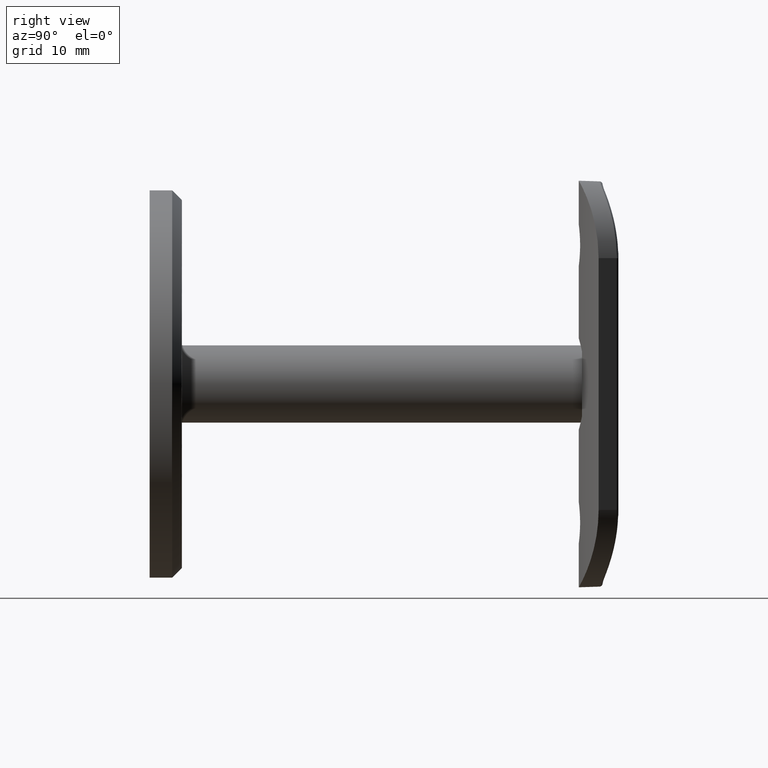
[diagram: clean part render]
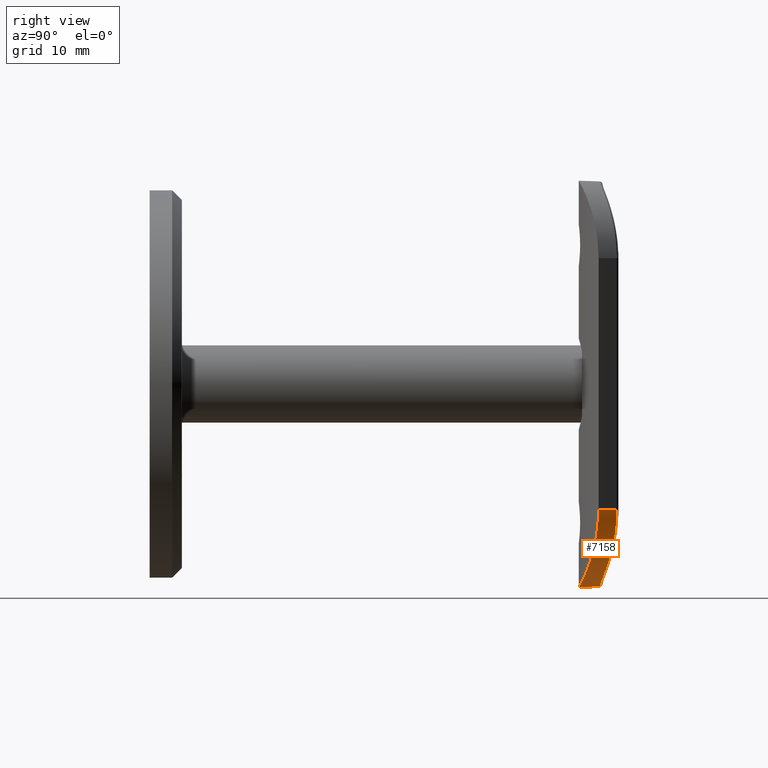
[diagram: same view with one face highlighted and labeled with its STEP entity id]
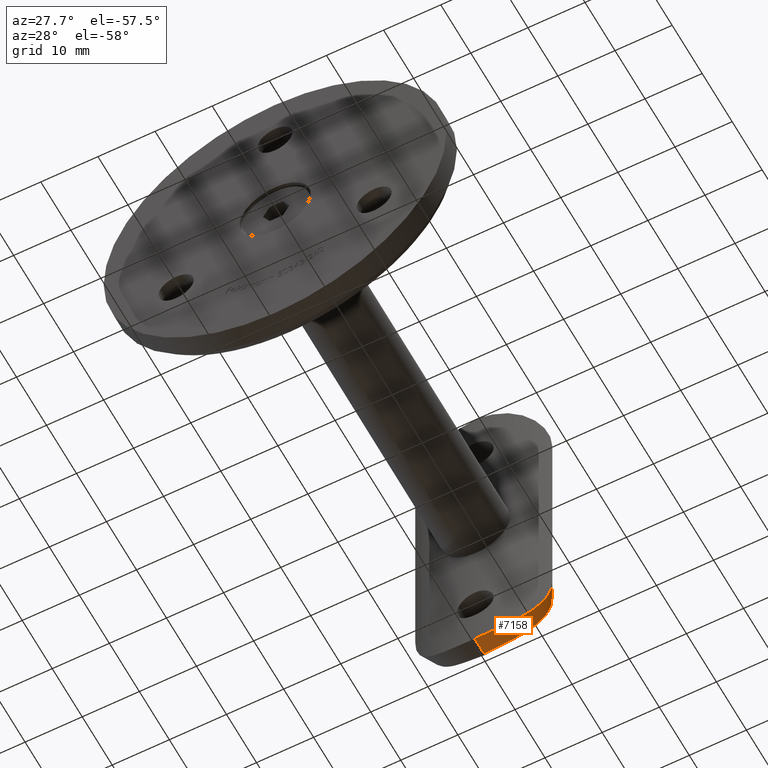
[diagram: same view with one face highlighted and labeled with its STEP entity id]
A machine part, right view. The second image highlights one B-rep face of the part: STEP entity #7158.
A second angle (auxiliary view) of the same face is appended — the face is thin or edge-on in the first view.
In plain terms, the highlighted cylindrical surface (partial cylindrical patch) has radius 12 mm, axis along (-0.4819, 0.8762, 0).
Its self-contained STEP definition (entity closure, byte-faithful):
#664 = CARTESIAN_POINT ( 'NONE',  ( -9.493047847731215683, 1.715295632416773852, 24.51326570578499897 ) ) ;
#683 = CARTESIAN_POINT ( 'NONE',  ( -9.166149050193594050, -1.952978448766014008, 27.58848537800124845 ) ) ;
#774 = CARTESIAN_POINT ( 'NONE',  ( -10.45505487545768730, 2.191269701761533462, 19.50000000000000000 ) ) ;
#792 = CARTESIAN_POINT ( 'NONE',  ( -8.074259893479329264, -2.356718930519098087, 28.69397140321250461 ) ) ;
#809 = B_SPLINE_CURVE_WITH_KNOTS ( 'NONE', 3,
 ( #10705, #4373, #12459, #13646, #12297, #4493, #4647, #11151, #5887, #8466, #8356, #792, #13746, #4546, #683, #5941, #16214, #10992, #5829, #15035, #5725, #9846, #4430, #7132 ),
 .UNSPECIFIED., .F., .F.,
 ( 4, 2, 2, 2, 2, 2, 2, 2, 2, 2, 2, 4 ),
 ( 6.199631591291489624E-18, 0.002406420888280990690, 0.003609631332421483867, 0.004812841776561977911, 0.007219262664842959927, 0.008422473108983450502, 0.009625683553123940209, 0.01082889399726443339, 0.01203210444140492136, 0.01443852532968591465, 0.01684494621796690447, 0.01925136710624789776 ),
 .UNSPECIFIED. ) ;
#1785 = DIRECTION ( 'NONE',  ( -0.8762109800277930738, 0.4819277108433734913, 0.000000000000000000 ) ) ;
#1845 = CARTESIAN_POINT ( 'NONE',  ( -2.885545255493508598, -0.2540987631411671388, 30.76614118052227909 ) ) ;
#1894 = CARTESIAN_POINT ( 'NONE',  ( -6.614694112078485233, 0.5932317887515379251, 28.59215257876478944 ) ) ;
#2163 = CARTESIAN_POINT ( 'NONE',  ( -9.960288091199432259, 1.940309669445862584, 23.12431856137339281 ) ) ;
#2514 = ORIENTED_EDGE ( 'NONE', *, *, #15013, .F. ) ;
#3156 = CARTESIAN_POINT ( 'NONE',  ( -3.563487049633609072, -0.1463804021405584466, 30.50564224895477494 ) ) ;
#3332 = CARTESIAN_POINT ( 'NONE',  ( -4.633017360115230467E-16, -0.4686549437375175930, 31.39852492656308769 ) ) ;
#3542 = CARTESIAN_POINT ( 'NONE',  ( -10.39441033852605933, 2.159319790259920602, 20.97575775976511636 ) ) ;
#4074 = VERTEX_POINT ( 'NONE', #10843 ) ;
#4373 = CARTESIAN_POINT ( 'NONE',  ( -0.8125589719993493443, -3.699999999999995293, 31.50000000000000711 ) ) ;
#4430 = CARTESIAN_POINT ( 'NONE',  ( -12.00000000000000000, -0.6176534026920423859, 20.31329885972721527 ) ) ;
#4493 = CARTESIAN_POINT ( 'NONE',  ( -3.959980470126887031, -3.386209395477758566, 30.94697538539421799 ) ) ;
#4529 = CARTESIAN_POINT ( 'NONE',  ( -8.056363116155694115, 1.104545384783348849, 27.00031777044233294 ) ) ;
#4546 = CARTESIAN_POINT ( 'NONE',  ( -8.908510052025812698, -2.053669611251317750, 27.87937364185427569 ) ) ;
#4628 = CARTESIAN_POINT ( 'NONE',  ( -1.462267733718383811, -0.4027156887386995066, 31.15653743707208889 ) ) ;
#4647 = CARTESIAN_POINT ( 'NONE',  ( -4.343585444218815539, -3.321130880666913310, 30.82433790244267158 ) ) ;
#5011 = ORIENTED_EDGE ( 'NONE', *, *, #8824, .F. ) ;
#5725 = CARTESIAN_POINT ( 'NONE',  ( -11.64449887647197635, -0.8100347474686370175, 22.69149219421942831 ) ) ;
#5795 = AXIS2_PLACEMENT_3D ( 'NONE', #9543, #10859, #1785 ) ;
#5811 = CARTESIAN_POINT ( 'NONE',  ( -8.471561614151779551, 1.269723628537176463, 26.40975643252788529 ) ) ;
#5829 = CARTESIAN_POINT ( 'NONE',  ( -10.86337671054186416, -1.207519595627838838, 24.95273175522527609 ) ) ;
#5887 = CARTESIAN_POINT ( 'NONE',  ( -6.156121038829931003, -2.936724213265714756, 30.05584034722584263 ) ) ;
#5926 = CARTESIAN_POINT ( 'NONE',  ( -0.3694255239971115379, -0.4630373677216959583, 31.35580555292285254 ) ) ;
#5941 = CARTESIAN_POINT ( 'NONE',  ( -9.651496139240768102, -1.754897554413284544, 26.97737785628717688 ) ) ;
#6036 = ORIENTED_EDGE ( 'NONE', *, *, #13974, .T. ) ;
#6579 = CARTESIAN_POINT ( 'NONE',  ( -11.99999999999999822, -0.6176534026920421638, 19.50000000000000000 ) ) ;
#6677 =( BOUNDED_CURVE ( )  B_SPLINE_CURVE ( 3, ( #7920, #12919, #10326, #15685 ),
 .UNSPECIFIED., .F., .F. ) 
 B_SPLINE_CURVE_WITH_KNOTS ( ( 4, 4 ),
 ( 4.712388980384689674, 4.842528913632067500 ),
 .UNSPECIFIED. ) 
 CURVE ( )  GEOMETRIC_REPRESENTATION_ITEM ( )  RATIONAL_B_SPLINE_CURVE ( ( 1.000000000000000000, 0.9985891310666825671, 0.9985891310666825671, 1.000000000000000000 ) ) 
 REPRESENTATION_ITEM ( '' )  );
#7116 = CARTESIAN_POINT ( 'NONE',  ( -8.663671254142759182, 1.349547193717770099, 26.10600176303315578 ) ) ;
#7132 = CARTESIAN_POINT ( 'NONE',  ( -11.99999999999999822, -0.6176534026920421638, 19.50000000000000000 ) ) ;
#7158 = ADVANCED_FACE ( 'NONE', ( #8766 ), #10632, .T. ) ;
#7448 = CARTESIAN_POINT ( 'NONE',  ( -10.21500871849437964, 2.067696369064172313, 22.05711163707681166 ) ) ;
#7625 = EDGE_LOOP ( 'NONE', ( #16491, #6036, #2514, #5011 ) ) ;
#7920 = CARTESIAN_POINT ( 'NONE',  ( -2.637213831673503539E-15, -3.699999999999994849, 31.50000000000000000 ) ) ;
#8333 = CARTESIAN_POINT ( 'NONE',  ( -1.823709883739445425, -0.3711974704668269953, 31.06997820427039159 ) ) ;
#8356 = CARTESIAN_POINT ( 'NONE',  ( -7.465386431756503960, -2.556697687672661257, 29.18815436188813450 ) ) ;
#8449 = CARTESIAN_POINT ( 'NONE',  ( -9.196144659064131588, 1.577887941172740449, 25.17001518979866503 ) ) ;
#8466 = CARTESIAN_POINT ( 'NONE',  ( -7.144447545478622708, -2.655485527817233127, 29.42030368926517525 ) ) ;
#8612 = CARTESIAN_POINT ( 'NONE',  ( -10.45505487545768375, 2.191269701761546784, 20.24369463097169941 ) ) ;
#8735 = VERTEX_POINT ( 'NONE', #10482 ) ;
#8766 = FACE_OUTER_BOUND ( 'NONE', #7625, .T. ) ;
#8824 = EDGE_CURVE ( 'NONE', #8735, #4074, #809, .T. ) ;
#9543 = CARTESIAN_POINT ( 'NONE',  ( -1.485468239666479562, -6.400785932812527612, 19.50000000000000000 ) ) ;
#9775 = CARTESIAN_POINT ( 'NONE',  ( -5.467565589066911258, 0.2703062758297813395, 29.45920198927894873 ) ) ;
#9846 = CARTESIAN_POINT ( 'NONE',  ( -11.92848259060795435, -0.6574309275929482999, 21.11410712426872038 ) ) ;
#10098 = CARTESIAN_POINT ( 'NONE',  ( -4.633017360115230467E-16, -0.4686549437375175930, 31.39852492656308769 ) ) ;
#10218 = VECTOR ( 'NONE', #10743, 1000.000000000000114 ) ;
#10326 = CARTESIAN_POINT ( 'NONE',  ( -2.194262323017153478E-17, -1.540438768114509305, 31.46612718541925346 ) ) ;
#10482 = CARTESIAN_POINT ( 'NONE',  ( -2.637213831673503539E-15, -3.699999999999994849, 31.50000000000000000 ) ) ;
#10632 = CYLINDRICAL_SURFACE ( 'NONE', #5795, 12.00000000000000178 ) ;
#10705 = CARTESIAN_POINT ( 'NONE',  ( -2.637213831673503539E-15, -3.699999999999994849, 31.50000000000000000 ) ) ;
#10743 = DIRECTION ( 'NONE',  ( 0.4819277108433735468, 0.8762109800277931848, 0.000000000000000000 ) ) ;
#10843 = CARTESIAN_POINT ( 'NONE',  ( -11.99999999999999822, -0.6176534026920421638, 19.50000000000000000 ) ) ;
#10859 = DIRECTION ( 'NONE',  ( 0.4819277108433735468, 0.8762109800277932958, 0.000000000000000000 ) ) ;
#10992 = CARTESIAN_POINT ( 'NONE',  ( -10.51395294504080091, -1.376102020913432256, 25.65610659191668930 ) ) ;
#11035 = CARTESIAN_POINT ( 'NONE',  ( -7.131093571847407553, 0.7641680875062166756, 28.10124151802545001 ) ) ;
#11151 = CARTESIAN_POINT ( 'NONE',  ( -5.455945028680432074, -3.106646016184993808, 30.40527435075045304 ) ) ;
#11414 = CARTESIAN_POINT ( 'NONE',  ( -10.14034840887878275, 2.029866555024359087, 22.41475408195938002 ) ) ;
#11961 = VERTEX_POINT ( 'NONE', #10098 ) ;
#12284 = CARTESIAN_POINT ( 'NONE',  ( -4.534825437327055120, 0.04882151512689441447, 30.02213823842947349 ) ) ;
#12297 = CARTESIAN_POINT ( 'NONE',  ( -3.185422266228740806, -3.498506488204488729, 31.15346151089249105 ) ) ;
#12327 = CARTESIAN_POINT ( 'NONE',  ( -7.833305283921843554, 1.019266358118369631, 27.28663773652139568 ) ) ;
#12446 = CARTESIAN_POINT ( 'NONE',  ( -0.7358220946504308024, -0.4485476517704858335, 31.29923357073367285 ) ) ;
#12459 = CARTESIAN_POINT ( 'NONE',  ( -1.613102312184484965, -3.660295573399650060, 31.43708710865748657 ) ) ;
#12919 = CARTESIAN_POINT ( 'NONE',  ( 4.222385495205356161E-16, -2.619075602068024367, 31.49999999999999289 ) ) ;
#13404 = VERTEX_POINT ( 'NONE', #13481 ) ;
#13481 = CARTESIAN_POINT ( 'NONE',  ( -10.45505487545768730, 2.191269701761533462, 19.50000000000000000 ) ) ;
#13570 = CARTESIAN_POINT ( 'NONE',  ( -4.850982341867969616, 0.1195039370240564003, 29.84545285072242393 ) ) ;
#13646 = CARTESIAN_POINT ( 'NONE',  ( -2.794747767780322523, -3.545827601457971490, 31.23757162576539770 ) ) ;
#13746 = CARTESIAN_POINT ( 'NONE',  ( -8.362564540343116803, -2.255537001844015954, 28.43211677885594213 ) ) ;
#13974 = EDGE_CURVE ( 'NONE', #11961, #13404, #14200, .T. ) ;
#14200 = B_SPLINE_CURVE_WITH_KNOTS ( 'NONE', 3,
 ( #3332, #5926, #12446, #4628, #8333, #1845, #3156, #12284, #13570, #9775, #14863, #1894, #11035, #12327, #4529, #5811, #7116, #8449, #664, #16479, #2163, #11414, #7448, #3542, #8612, #774 ),
 .UNSPECIFIED., .F., .F.,
 ( 4, 2, 2, 2, 2, 2, 2, 2, 2, 2, 2, 2, 4 ),
 ( 0.000000000000000000, 0.001112496874376510143, 0.002224993748753018551, 0.004449987497506037969, 0.005562484371882548545, 0.006674981246259058254, 0.008899974995012070733, 0.01001247186938857524, 0.01112496874376508148, 0.01334996249251809222, 0.01446245936689460193, 0.01557495624127111337, 0.01779994999002414494 ),
 .UNSPECIFIED. ) ;
#14863 = CARTESIAN_POINT ( 'NONE',  ( -5.764533070701307160, 0.3496055397817711685, 29.25166888921781094 ) ) ;
#15013 = EDGE_CURVE ( 'NONE', #4074, #13404, #16274, .T. ) ;
#15035 = CARTESIAN_POINT ( 'NONE',  ( -11.42861343239433580, -0.9245719279828018555, 23.47385143687692732 ) ) ;
#15343 = EDGE_CURVE ( 'NONE', #8735, #11961, #6677, .T. ) ;
#15685 = CARTESIAN_POINT ( 'NONE',  ( -4.633017360115230467E-16, -0.4686549437375175930, 31.39852492656308769 ) ) ;
#16214 = CARTESIAN_POINT ( 'NONE',  ( -9.880202087646582143, -1.657055889912201652, 26.65553979867360823 ) ) ;
#16274 = LINE ( 'NONE', #6579, #10218 ) ;
#16479 = CARTESIAN_POINT ( 'NONE',  ( -9.854190850945037994, 1.888249747847263293, 23.47806087955931531 ) ) ;
#16491 = ORIENTED_EDGE ( 'NONE', *, *, #15343, .T. ) ;